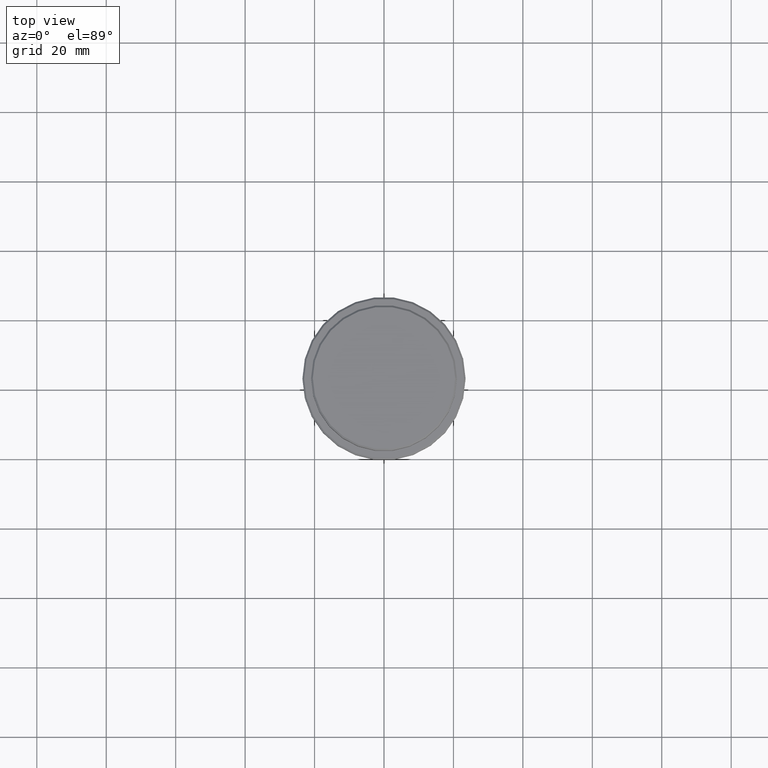
[diagram: clean part render]
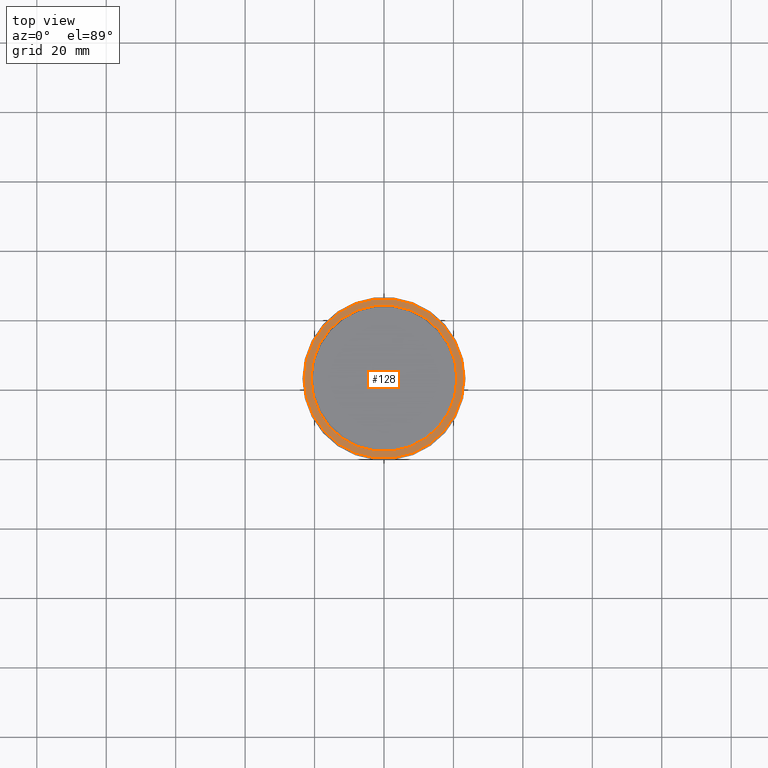
[diagram: same view with one face highlighted and labeled with its STEP entity id]
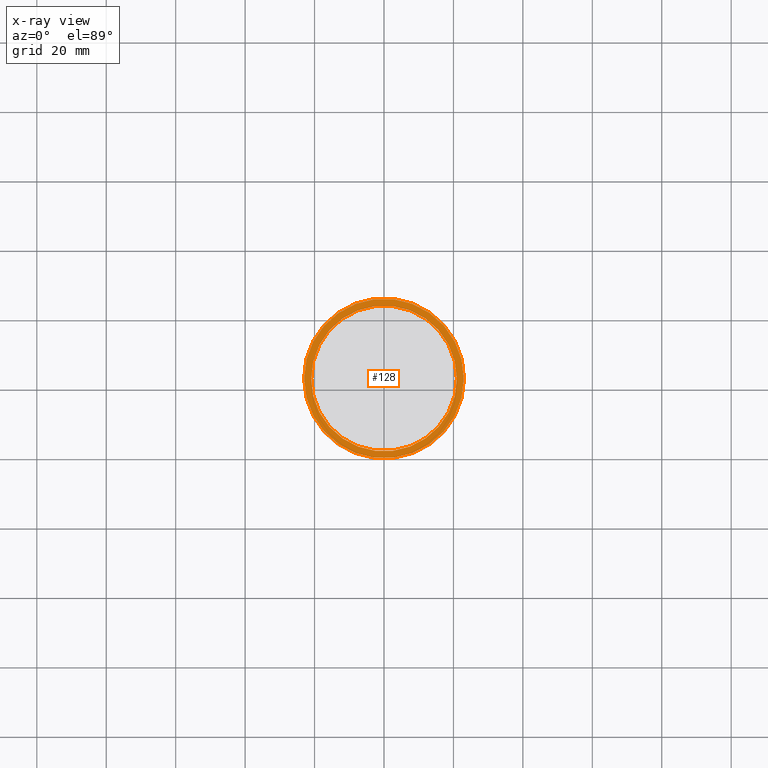
[diagram: x-ray of the same camera — body ghosted, the highlighted face saturated]
A machine part, top view. The second image highlights one B-rep face of the part: STEP entity #128.
The next image is the same camera in x-ray: the body ghosted, the highlighted face saturated — about 0% of this face is hidden behind the body in this view.
In plain terms, the highlighted planar face has unit normal (0, -0, 1).
Its self-contained STEP definition (entity closure, byte-faithful):
#14 = EDGE_CURVE ( 'NONE', #195, #1091, #247, .T. ) ;
#20 = EDGE_CURVE ( 'NONE', #780, #961, #432, .T. ) ;
#31 = AXIS2_PLACEMENT_3D ( 'NONE', #447, #239, #1008 ) ;
#91 = CARTESIAN_POINT ( 'NONE',  ( -23.00000000000002487, 0.000000000000000000, -9.000000000000000000 ) ) ;
#119 = CIRCLE ( 'NONE', #31, 23.00000000000002487 ) ;
#128 = ADVANCED_FACE ( 'NONE', ( #692, #1138 ), #593, .T. ) ;
#195 = VERTEX_POINT ( 'NONE', #91 ) ;
#239 = DIRECTION ( 'NONE',  ( -0.000000000000000000, -0.000000000000000000, 1.000000000000000000 ) ) ;
#247 = CIRCLE ( 'NONE', #562, 23.00000000000002487 ) ;
#414 = CIRCLE ( 'NONE', #499, 20.99999999999999289 ) ;
#432 = CIRCLE ( 'NONE', #782, 20.99999999999999289 ) ;
#444 = CARTESIAN_POINT ( 'NONE',  ( 0.000000000000000000, 0.000000000000000000, -9.000000000000000000 ) ) ;
#447 = CARTESIAN_POINT ( 'NONE',  ( 0.000000000000000000, 0.000000000000000000, -9.000000000000000000 ) ) ;
#499 = AXIS2_PLACEMENT_3D ( 'NONE', #570, #751, #1056 ) ;
#517 = AXIS2_PLACEMENT_3D ( 'NONE', #1020, #913, #1354 ) ;
#519 = CARTESIAN_POINT ( 'NONE',  ( -20.99999999999999289, 2.571758278209440872E-15, -9.000000000000000000 ) ) ;
#562 = AXIS2_PLACEMENT_3D ( 'NONE', #444, #647, #681 ) ;
#563 = DIRECTION ( 'NONE',  ( 0.000000000000000000, 0.000000000000000000, -1.000000000000000000 ) ) ;
#570 = CARTESIAN_POINT ( 'NONE',  ( 0.000000000000000000, 0.000000000000000000, -9.000000000000000000 ) ) ;
#585 = CARTESIAN_POINT ( 'NONE',  ( 20.99999999999999289, 0.000000000000000000, -9.000000000000000000 ) ) ;
#593 = PLANE ( 'NONE',  #517 ) ;
#647 = DIRECTION ( 'NONE',  ( -0.000000000000000000, -0.000000000000000000, 1.000000000000000000 ) ) ;
#666 = CARTESIAN_POINT ( 'NONE',  ( 0.000000000000000000, 0.000000000000000000, -9.000000000000000000 ) ) ;
#681 = DIRECTION ( 'NONE',  ( 1.000000000000000000, 0.000000000000000000, 0.000000000000000000 ) ) ;
#692 = FACE_OUTER_BOUND ( 'NONE', #1194, .T. ) ;
#701 = EDGE_CURVE ( 'NONE', #1091, #195, #119, .T. ) ;
#751 = DIRECTION ( 'NONE',  ( 0.000000000000000000, 0.000000000000000000, -1.000000000000000000 ) ) ;
#752 = ORIENTED_EDGE ( 'NONE', *, *, #1188, .T. ) ;
#780 = VERTEX_POINT ( 'NONE', #585 ) ;
#782 = AXIS2_PLACEMENT_3D ( 'NONE', #666, #563, #1124 ) ;
#791 = EDGE_LOOP ( 'NONE', ( #1282, #752 ) ) ;
#811 = ORIENTED_EDGE ( 'NONE', *, *, #14, .T. ) ;
#883 = CARTESIAN_POINT ( 'NONE',  ( 23.00000000000002487, 2.847303808017597717E-15, -9.000000000000000000 ) ) ;
#913 = DIRECTION ( 'NONE',  ( 0.000000000000000000, -0.000000000000000000, 1.000000000000000000 ) ) ;
#961 = VERTEX_POINT ( 'NONE', #519 ) ;
#1008 = DIRECTION ( 'NONE',  ( 1.000000000000000000, 0.000000000000000000, 0.000000000000000000 ) ) ;
#1020 = CARTESIAN_POINT ( 'NONE',  ( 0.000000000000000000, 20.49999999999999645, -9.000000000000000000 ) ) ;
#1056 = DIRECTION ( 'NONE',  ( 1.000000000000000000, 0.000000000000000000, 0.000000000000000000 ) ) ;
#1091 = VERTEX_POINT ( 'NONE', #883 ) ;
#1124 = DIRECTION ( 'NONE',  ( 1.000000000000000000, 0.000000000000000000, 0.000000000000000000 ) ) ;
#1134 = ORIENTED_EDGE ( 'NONE', *, *, #701, .T. ) ;
#1138 = FACE_BOUND ( 'NONE', #791, .T. ) ;
#1188 = EDGE_CURVE ( 'NONE', #961, #780, #414, .T. ) ;
#1194 = EDGE_LOOP ( 'NONE', ( #811, #1134 ) ) ;
#1282 = ORIENTED_EDGE ( 'NONE', *, *, #20, .T. ) ;
#1354 = DIRECTION ( 'NONE',  ( 1.000000000000000000, 0.000000000000000000, 0.000000000000000000 ) ) ;